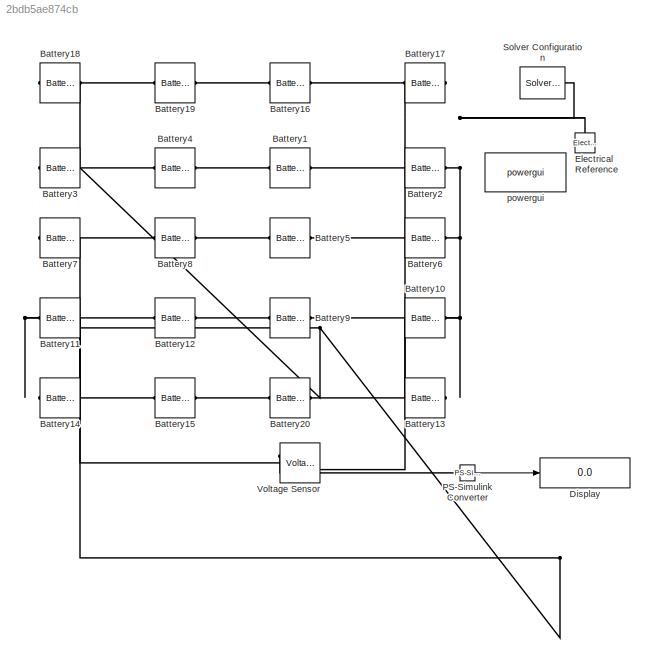
MODEL slx_2bdb5ae874cb
KIND model
CONFIG AbsTol = auto
CONFIG EnableMultiTasking = off
CONFIG FixedStep = auto
CONFIG MaxStep = auto
CONFIG MinStep = auto
CONFIG RelTol = 1e-3
CONFIG SampleTimeConstraint = Unconstrained
CONFIG Solver = VariableStepAuto
CONFIG SolverName = VariableStepAuto
CONFIG StartTime = 0.0
CONFIG StopTime = 10.0
BLOCK [Reference] Battery1  REF=ee_lib/Sources/Battery
  NameLocation = top
  Ports = [0, 0, 0, 0, 0, 1, 1]
  SourceBlock = ee_lib/Sources/Battery
  SourceProductBaseCode = PS
  SourceType = Battery
BLOCK [Reference] Battery10  REF=ee_lib/Sources/Battery
  NameLocation = top
  Ports = [0, 0, 0, 0, 0, 1, 1]
  SourceBlock = ee_lib/Sources/Battery
  SourceProductBaseCode = PS
  SourceType = Battery
BLOCK [Reference] Battery11  REF=ee_lib/Sources/Battery
  NameLocation = top
  Ports = [0, 0, 0, 0, 0, 1, 1]
  SourceBlock = ee_lib/Sources/Battery
  SourceProductBaseCode = PS
  SourceType = Battery
BLOCK [Reference] Battery12  REF=ee_lib/Sources/Battery
  NameLocation = top
  Ports = [0, 0, 0, 0, 0, 1, 1]
  SourceBlock = ee_lib/Sources/Battery
  SourceProductBaseCode = PS
  SourceType = Battery
BLOCK [Reference] Battery13  REF=ee_lib/Sources/Battery
  NameLocation = top
  Ports = [0, 0, 0, 0, 0, 1, 1]
  SourceBlock = ee_lib/Sources/Battery
  SourceProductBaseCode = PS
  SourceType = Battery
BLOCK [Reference] Battery14  REF=ee_lib/Sources/Battery
  NameLocation = top
  Ports = [0, 0, 0, 0, 0, 1, 1]
  SourceBlock = ee_lib/Sources/Battery
  SourceProductBaseCode = PS
  SourceType = Battery
BLOCK [Reference] Battery15  REF=ee_lib/Sources/Battery
  NameLocation = top
  Ports = [0, 0, 0, 0, 0, 1, 1]
  SourceBlock = ee_lib/Sources/Battery
  SourceProductBaseCode = PS
  SourceType = Battery
BLOCK [Reference] Battery16  REF=ee_lib/Sources/Battery
  NameLocation = top
  Ports = [0, 0, 0, 0, 0, 1, 1]
  SourceBlock = ee_lib/Sources/Battery
  SourceProductBaseCode = PS
  SourceType = Battery
BLOCK [Reference] Battery17  REF=ee_lib/Sources/Battery
  NameLocation = top
  Ports = [0, 0, 0, 0, 0, 1, 1]
  SourceBlock = ee_lib/Sources/Battery
  SourceProductBaseCode = PS
  SourceType = Battery
BLOCK [Reference] Battery18  REF=ee_lib/Sources/Battery
  NameLocation = top
  Ports = [0, 0, 0, 0, 0, 1, 1]
  SourceBlock = ee_lib/Sources/Battery
  SourceProductBaseCode = PS
  SourceType = Battery
BLOCK [Reference] Battery19  REF=ee_lib/Sources/Battery
  NameLocation = top
  Ports = [0, 0, 0, 0, 0, 1, 1]
  SourceBlock = ee_lib/Sources/Battery
  SourceProductBaseCode = PS
  SourceType = Battery
BLOCK [Reference] Battery2  REF=ee_lib/Sources/Battery
  NameLocation = top
  Ports = [0, 0, 0, 0, 0, 1, 1]
  SourceBlock = ee_lib/Sources/Battery
  SourceProductBaseCode = PS
  SourceType = Battery
BLOCK [Reference] Battery20  REF=ee_lib/Sources/Battery
  NameLocation = top
  Ports = [0, 0, 0, 0, 0, 1, 1]
  SourceBlock = ee_lib/Sources/Battery
  SourceProductBaseCode = PS
  SourceType = Battery
BLOCK [Reference] Battery3  REF=ee_lib/Sources/Battery
  NameLocation = top
  Ports = [0, 0, 0, 0, 0, 1, 1]
  SourceBlock = ee_lib/Sources/Battery
  SourceProductBaseCode = PS
  SourceType = Battery
BLOCK [Reference] Battery4  REF=ee_lib/Sources/Battery
  NameLocation = top
  Ports = [0, 0, 0, 0, 0, 1, 1]
  SourceBlock = ee_lib/Sources/Battery
  SourceProductBaseCode = PS
  SourceType = Battery
BLOCK [Reference] Battery5  REF=ee_lib/Sources/Battery
  NameLocation = top
  Ports = [0, 0, 0, 0, 0, 1, 1]
  SourceBlock = ee_lib/Sources/Battery
  SourceProductBaseCode = PS
  SourceType = Battery
BLOCK [Reference] Battery6  REF=ee_lib/Sources/Battery
  NameLocation = top
  Ports = [0, 0, 0, 0, 0, 1, 1]
  SourceBlock = ee_lib/Sources/Battery
  SourceProductBaseCode = PS
  SourceType = Battery
BLOCK [Reference] Battery7  REF=ee_lib/Sources/Battery
  NameLocation = top
  Ports = [0, 0, 0, 0, 0, 1, 1]
  SourceBlock = ee_lib/Sources/Battery
  SourceProductBaseCode = PS
  SourceType = Battery
BLOCK [Reference] Battery8  REF=ee_lib/Sources/Battery
  NameLocation = top
  Ports = [0, 0, 0, 0, 0, 1, 1]
  SourceBlock = ee_lib/Sources/Battery
  SourceProductBaseCode = PS
  SourceType = Battery
BLOCK [Reference] Battery9  REF=ee_lib/Sources/Battery
  NameLocation = top
  Ports = [0, 0, 0, 0, 0, 1, 1]
  SourceBlock = ee_lib/Sources/Battery
  SourceProductBaseCode = PS
  SourceType = Battery
BLOCK [Display] Display
  Decimation = 1
  Ports = [1]
BLOCK [Reference] Electrical Reference  REF=fl_lib/Electrical/Electrical Elements/Electrical Reference
  NameLocation = right
  Ports = [0, 0, 0, 0, 0, 1]
  SourceBlock = fl_lib/Electrical/Electrical Elements/Electrical Reference
  SourceProductBaseCode = SS
  SourceType = Electrical Reference
BLOCK [Reference] PS-Simulink Converter  REF=nesl_utility/PS-Simulink
Converter
  Ports = [0, 1, 0, 0, 0, 1]
  SourceBlock = nesl_utility/PS-Simulink\nConverter
  SourceProductBaseCode = SS
  SourceType = PS-Simulink\nConverter
BLOCK [Reference] Solver Configuration  REF=nesl_utility/Solver
Configuration
  Ports = [0, 0, 0, 0, 0, 0, 1]
  SourceBlock = nesl_utility/Solver\nConfiguration
  SourceProductBaseCode = SS
  SourceType = Solver\nConfiguration
BLOCK [Reference] Voltage Sensor  REF=fl_lib/Electrical/Electrical Sensors/Voltage Sensor
  NameLocation = top
  Ports = [0, 0, 0, 0, 0, 1, 2]
  SourceBlock = fl_lib/Electrical/Electrical Sensors/Voltage Sensor
  SourceProductBaseCode = SS
  SourceType = Voltage Sensor
BLOCK [Reference] powergui  REF=powerlib/powergui
  Ports = []
  Priority = 1
  SourceBlock = powerlib/powergui
  SourceProductBaseCode = PS
  SourceType = PSB option menu block
LINE PS-Simulink Converter:1 -> Display:1
PLINE Battery10:LConn1 -- Battery9:RConn1
PNET net1: Battery10:RConn1 -- Battery13:RConn1 -- Battery17:RConn1 -- Battery2:RConn1 -- Battery6:RConn1 -- Electrical Reference:LConn1 -- Solver Configuration:RConn1 -- Voltage Sensor:RConn2
PNET net2: Battery11:LConn1 -- Battery14:LConn1 -- Battery18:LConn1 -- Battery3:LConn1 -- Battery7:LConn1 -- Voltage Sensor:LConn1
PLINE Battery11:RConn1 -- Battery12:LConn1
PLINE Battery12:RConn1 -- Battery9:LConn1
PLINE Battery13:LConn1 -- Battery20:RConn1
PLINE Battery14:RConn1 -- Battery15:LConn1
PLINE Battery15:RConn1 -- Battery20:LConn1
PLINE Battery16:LConn1 -- Battery19:RConn1
PLINE Battery16:RConn1 -- Battery17:LConn1
PLINE Battery18:RConn1 -- Battery19:LConn1
PLINE Battery1:LConn1 -- Battery4:RConn1
PLINE Battery1:RConn1 -- Battery2:LConn1
PLINE Battery3:RConn1 -- Battery4:LConn1
PLINE Battery5:LConn1 -- Battery8:RConn1
PLINE Battery5:RConn1 -- Battery6:LConn1
PLINE Battery7:RConn1 -- Battery8:LConn1
PLINE PS-Simulink Converter:LConn1 -- Voltage Sensor:RConn1
note: PNET lines group multi-terminal physical nets as a canonical sorted terminal list (undirected conserving connections); 2-terminal nets keep the pairwise PLINE form
